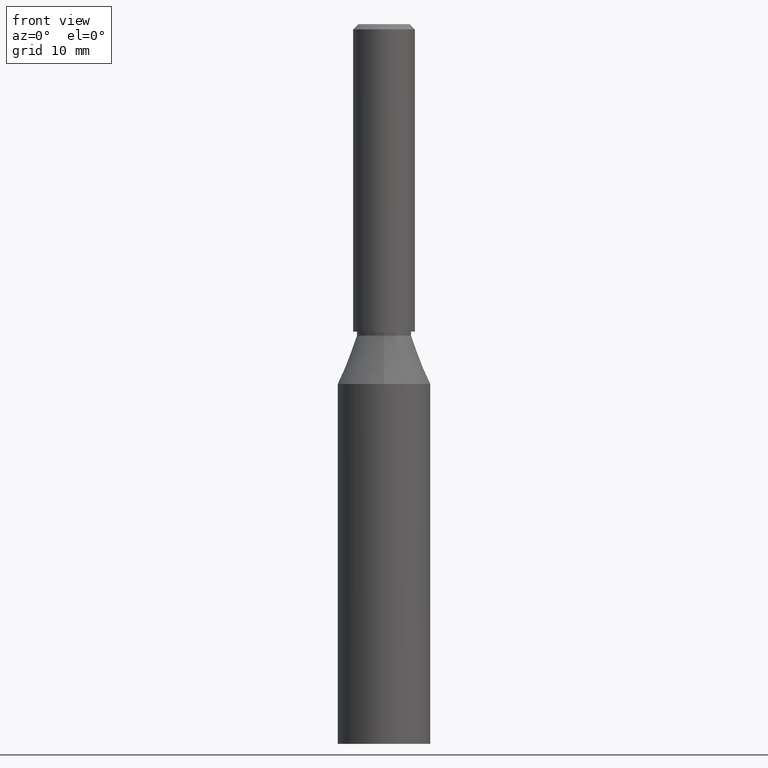
[diagram: clean part render]
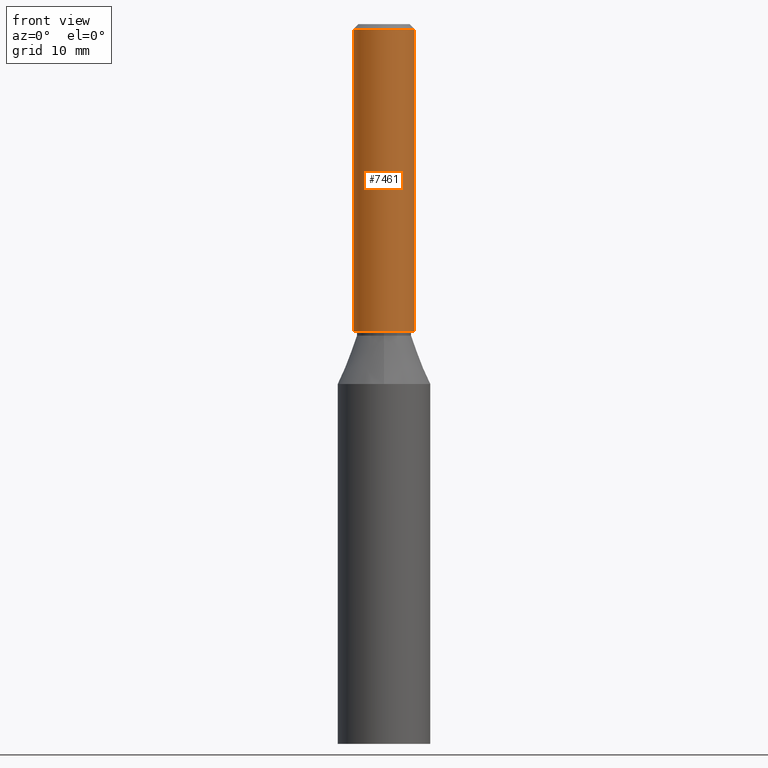
[diagram: same view with one face highlighted and labeled with its STEP entity id]
A machine part, front view. The second image highlights one B-rep face of the part: STEP entity #7461.
In plain terms, the highlighted cylindrical surface (edge-blend (fillet) strip) has radius 3 mm, axis along (-0, -0, -1).
Its self-contained STEP definition (entity closure, byte-faithful):
#56 = CARTESIAN_POINT ( 'NONE',  ( 3.000000000000000400, 3.673940397442060400E-016, 40.10000000000000100 ) ) ;
#200 = CARTESIAN_POINT ( 'NONE',  ( 0.0000000000000000000, 0.0000000000000000000, 69.49999999999998600 ) ) ;
#265 = ORIENTED_EDGE ( 'NONE', *, *, #12086, .F. ) ;
#440 = LINE ( 'NONE', #6585, #1401 ) ;
#519 = DIRECTION ( 'NONE',  ( -0.0000000000000000000, -0.0000000000000000000, -1.000000000000000000 ) ) ;
#947 = ORIENTED_EDGE ( 'NONE', *, *, #9493, .T. ) ;
#1401 = VECTOR ( 'NONE', #519, 1000.000000000000000 ) ;
#1472 = AXIS2_PLACEMENT_3D ( 'NONE', #200, #7231, #4308 ) ;
#2789 = VECTOR ( 'NONE', #4858, 1000.000000000000000 ) ;
#3589 = DIRECTION ( 'NONE',  ( -0.0000000000000000000, -0.0000000000000000000, -1.000000000000000000 ) ) ;
#3794 = DIRECTION ( 'NONE',  ( 0.0000000000000000000, 1.000000000000000000, 0.0000000000000000000 ) ) ;
#3940 = EDGE_CURVE ( 'NONE', #12406, #9047, #440, .T. ) ;
#4308 = DIRECTION ( 'NONE',  ( 1.000000000000000000, 0.0000000000000000000, 0.0000000000000000000 ) ) ;
#4534 = EDGE_LOOP ( 'NONE', ( #12435, #947, #10049, #265 ) ) ;
#4549 = VERTEX_POINT ( 'NONE', #7584 ) ;
#4620 = DIRECTION ( 'NONE',  ( -0.0000000000000000000, 1.967742040464204400E-018, -1.000000000000000000 ) ) ;
#4795 = CIRCLE ( 'NONE', #11148, 3.000000000000000400 ) ;
#4858 = DIRECTION ( 'NONE',  ( -0.0000000000000000000, -0.0000000000000000000, -1.000000000000000000 ) ) ;
#4895 = CARTESIAN_POINT ( 'NONE',  ( -3.000000000000000400, 0.0000000000000000000, 69.49999999999998600 ) ) ;
#5878 = AXIS2_PLACEMENT_3D ( 'NONE', #6583, #3589, #10623 ) ;
#6583 = CARTESIAN_POINT ( 'NONE',  ( 0.0000000000000000000, 0.0000000000000000000, 70.00000000000000000 ) ) ;
#6585 = CARTESIAN_POINT ( 'NONE',  ( -3.000000000000000400, 0.0000000000000000000, 70.00000000000000000 ) ) ;
#6716 = EDGE_CURVE ( 'NONE', #4549, #10108, #8153, .T. ) ;
#7231 = DIRECTION ( 'NONE',  ( 0.0000000000000000000, 0.0000000000000000000, -1.000000000000000000 ) ) ;
#7461 = ADVANCED_FACE ( 'NONE', ( #13044 ), #8929, .T. ) ;
#7584 = CARTESIAN_POINT ( 'NONE',  ( 3.000000000000000400, 3.673940397442060400E-016, 69.49999999999998600 ) ) ;
#8153 = LINE ( 'NONE', #12106, #2789 ) ;
#8633 = CARTESIAN_POINT ( 'NONE',  ( 0.0000000000000000000, 0.0000000000000000000, 40.10000000000000100 ) ) ;
#8929 = CYLINDRICAL_SURFACE ( 'NONE', #5878, 3.000000000000000400 ) ;
#9047 = VERTEX_POINT ( 'NONE', #10740 ) ;
#9493 = EDGE_CURVE ( 'NONE', #4549, #12406, #10734, .T. ) ;
#10049 = ORIENTED_EDGE ( 'NONE', *, *, #3940, .T. ) ;
#10108 = VERTEX_POINT ( 'NONE', #56 ) ;
#10623 = DIRECTION ( 'NONE',  ( -1.000000000000000000, 0.0000000000000000000, 0.0000000000000000000 ) ) ;
#10734 = CIRCLE ( 'NONE', #1472, 3.000000000000000400 ) ;
#10740 = CARTESIAN_POINT ( 'NONE',  ( -3.000000000000000400, 0.0000000000000000000, 40.10000000000000100 ) ) ;
#11148 = AXIS2_PLACEMENT_3D ( 'NONE', #8633, #4620, #3794 ) ;
#12086 = EDGE_CURVE ( 'NONE', #10108, #9047, #4795, .T. ) ;
#12106 = CARTESIAN_POINT ( 'NONE',  ( 3.000000000000000400, 3.673940397442060400E-016, 70.00000000000000000 ) ) ;
#12406 = VERTEX_POINT ( 'NONE', #4895 ) ;
#12435 = ORIENTED_EDGE ( 'NONE', *, *, #6716, .F. ) ;
#13044 = FACE_OUTER_BOUND ( 'NONE', #4534, .T. ) ;